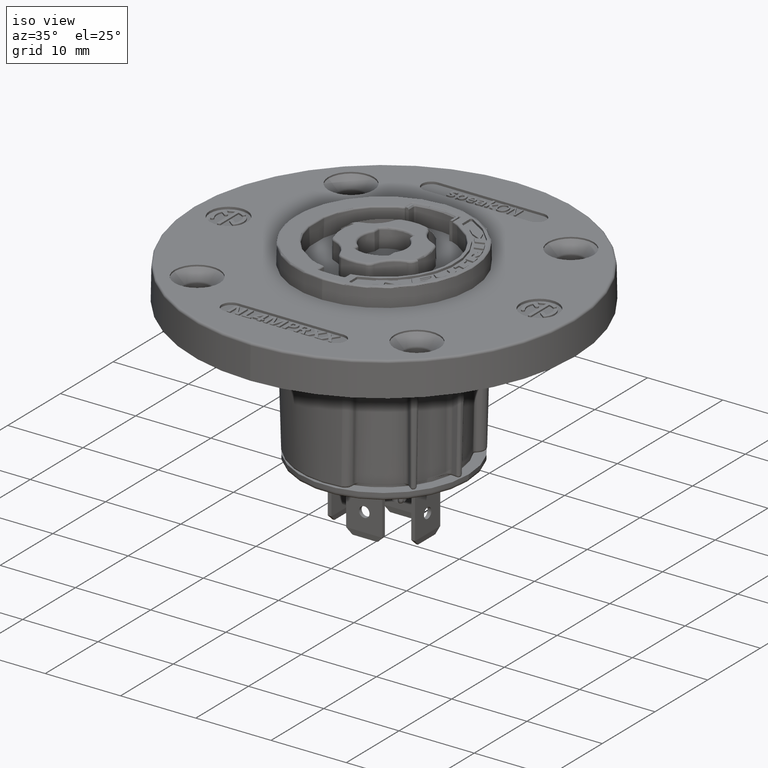
[diagram: clean part render]
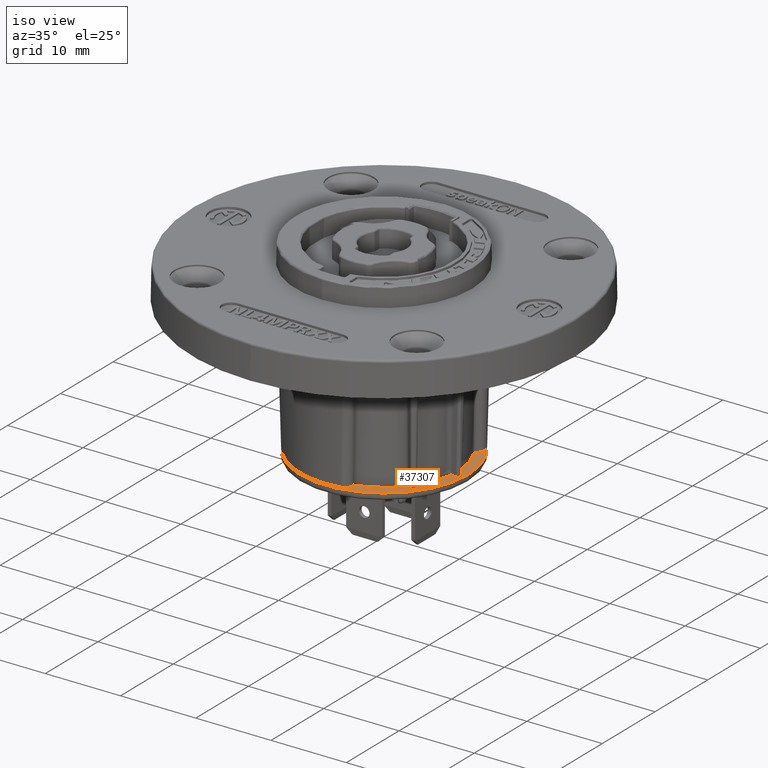
[diagram: same view with one face highlighted and labeled with its STEP entity id]
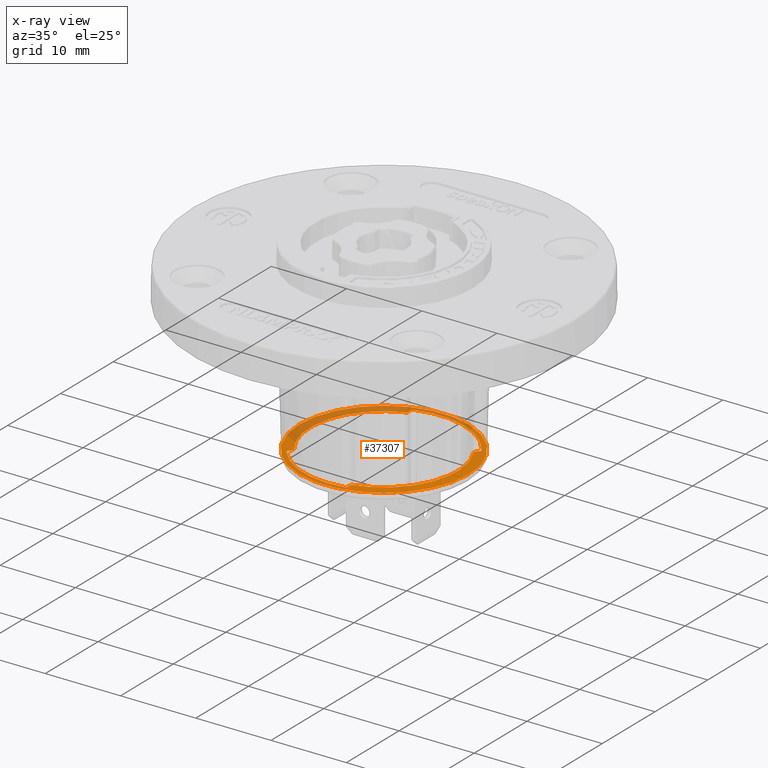
[diagram: x-ray of the same camera — body ghosted, the highlighted face saturated]
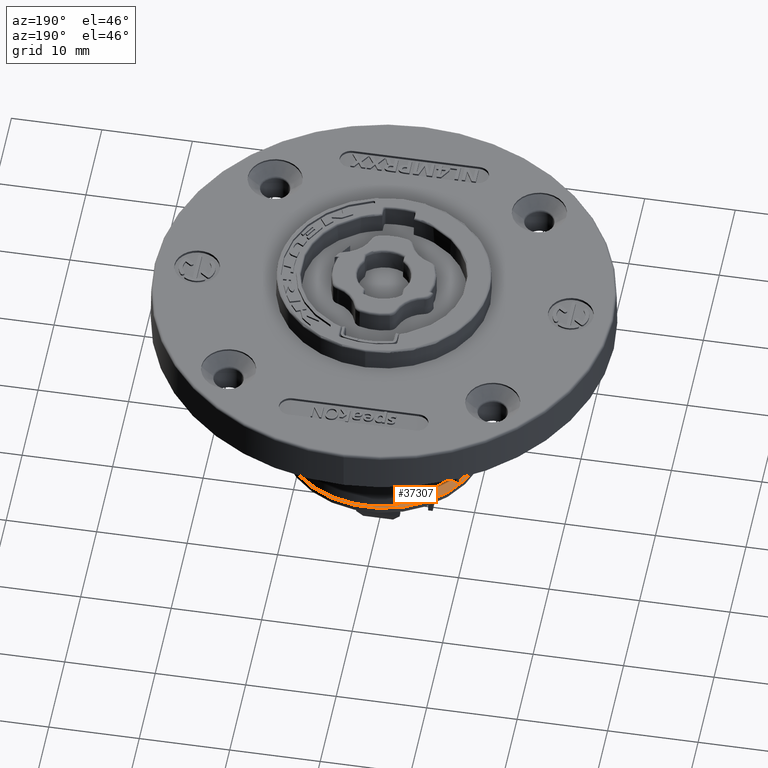
[diagram: same view with one face highlighted and labeled with its STEP entity id]
A machine part, iso view. The second image highlights one B-rep face of the part: STEP entity #37307.
The next image is the same camera in x-ray: the body ghosted, the highlighted face saturated — about 40% of this face is hidden behind the body in this view.
A second angle (auxiliary view) of the same face is appended — the face is thin or edge-on in the first view.
In plain terms, the highlighted planar face has unit normal (0, 0, -1).
Its self-contained STEP definition (entity closure, byte-faithful):
#9944=CARTESIAN_POINT('',(0.E0,0.E0,-1.795E1));
#9945=DIRECTION('',(0.E0,0.E0,-1.E0));
#9946=DIRECTION('',(8.581025859946E-1,5.134782876708E-1,0.E0));
#9947=AXIS2_PLACEMENT_3D('',#9944,#9945,#9946);
#9990=CARTESIAN_POINT('',(0.E0,0.E0,-1.795E1));
#9991=DIRECTION('',(0.E0,0.E0,-1.E0));
#9992=DIRECTION('',(-8.069467353079E-1,-5.906242175664E-1,0.E0));
#9993=AXIS2_PLACEMENT_3D('',#9990,#9991,#9992);
#9995=CARTESIAN_POINT('',(0.E0,0.E0,-1.795E1));
#9996=DIRECTION('',(0.E0,0.E0,-1.E0));
#9997=DIRECTION('',(-1.E0,0.E0,0.E0));
#9998=AXIS2_PLACEMENT_3D('',#9995,#9996,#9997);
#10000=CARTESIAN_POINT('',(0.E0,0.E0,-1.795E1));
#10001=DIRECTION('',(0.E0,0.E0,-1.E0));
#10002=DIRECTION('',(1.E0,0.E0,0.E0));
#10003=AXIS2_PLACEMENT_3D('',#10000,#10001,#10002);
#10005=CARTESIAN_POINT('',(0.E0,0.E0,-1.795E1));
#10006=DIRECTION('',(0.E0,0.E0,1.E0));
#10007=DIRECTION('',(2.901407772594E-1,9.569839755039E-1,0.E0));
#10008=AXIS2_PLACEMENT_3D('',#10005,#10006,#10007);
#10010=CARTESIAN_POINT('',(-3.089168238449E0,1.019032009625E1,-1.795E1));
#10011=CARTESIAN_POINT('',(-3.103853188476E0,1.018586843140E1,-1.795E1));
#10012=CARTESIAN_POINT('',(-3.132814702913E0,1.017525103069E1,-1.795E1));
#10013=CARTESIAN_POINT('',(-3.174309815713E0,1.015432757762E1,-1.795E1));
#10014=CARTESIAN_POINT('',(-3.213260241839E0,1.012861790410E1,-1.795E1));
#10015=CARTESIAN_POINT('',(-3.248975087964E0,1.009852784298E1,-1.795E1));
#10016=CARTESIAN_POINT('',(-3.280883508228E0,1.006456259805E1,-1.795E1));
#10017=CARTESIAN_POINT('',(-3.308612847852E0,1.002716954580E1,-1.795E1));
#10018=CARTESIAN_POINT('',(-3.331861621331E0,9.986742849113E0,-1.795E1));
#10019=CARTESIAN_POINT('',(-3.350285705833E0,9.943802341352E0,-1.795E1));
#10020=CARTESIAN_POINT('',(-3.363562250256E0,9.899073805828E0,-1.795E1));
#10021=CARTESIAN_POINT('',(-3.371505247242E0,9.853435070212E0,-1.795E1));
#10022=CARTESIAN_POINT('',(-3.373262242124E0,9.822727310652E0,-1.795E1));
#10023=CARTESIAN_POINT('',(-3.373262242124E0,9.807484011990E0,-1.795E1));
#10025=DIRECTION('',(8.662716195655E-12,-1.E0,0.E0));
#10026=VECTOR('',#10025,6.064069449662E-1);
#10027=CARTESIAN_POINT('',(-3.373262242124E0,9.807484011990E0,-1.795E1));
#10028=LINE('',#10027,#10026);
#10029=CARTESIAN_POINT('',(3.176341302403E0,1.015209320224E1,-1.795E1));
#10030=CARTESIAN_POINT('',(3.175436080729E0,1.015262666202E1,-1.795E1));
#10031=CARTESIAN_POINT('',(3.161190543447E0,1.016094628441E1,-1.795E1));
#10032=CARTESIAN_POINT('',(3.132944549091E0,1.017518098150E1,-1.795E1));
#10033=CARTESIAN_POINT('',(3.104092162201E0,1.018577960173E1,-1.795E1));
#10034=CARTESIAN_POINT('',(3.089629775282E0,1.019016466419E1,-1.795E1));
#14335=CARTESIAN_POINT('',(3.176341302403E0,1.015209320224E1,-1.795E1));
#14337=CARTESIAN_POINT('',(0.E0,0.E0,-1.795E1));
#14338=DIRECTION('',(0.E0,0.E0,-1.E0));
#14339=DIRECTION('',(2.986014668584E-1,9.543778937035E-1,0.E0));
#14340=AXIS2_PLACEMENT_3D('',#14337,#14338,#14339);
#14354=CARTESIAN_POINT('',(8.870211503555E0,5.871412807231E0,-1.795E1));
#14355=CARTESIAN_POINT('',(8.879165378272E0,5.857885779547E0,-1.795E1));
#14356=CARTESIAN_POINT('',(8.894766080287E0,5.829940285587E0,-1.795E1));
#14357=CARTESIAN_POINT('',(8.910886710938E0,5.784035713683E0,-1.795E1));
#14358=CARTESIAN_POINT('',(8.917845859550E0,5.736109407467E0,-1.795E1));
#14359=CARTESIAN_POINT('',(8.914964672831E0,5.687939819738E0,-1.795E1));
#14360=CARTESIAN_POINT('',(8.902453134646E0,5.641466031130E0,-1.795E1));
#14361=CARTESIAN_POINT('',(8.881361712769E0,5.598261512465E0,-1.795E1));
#14362=CARTESIAN_POINT('',(8.862863510738E0,5.572530940812E0,-1.795E1));
#14363=CARTESIAN_POINT('',(8.852545789677E0,5.560234759670E0,-1.795E1));
#14382=CARTESIAN_POINT('',(8.409349187075E0,5.032053616294E0,-1.795E1));
#14390=DIRECTION('',(-6.427876096866E-1,-7.660444431190E-1,0.E0));
#14391=VECTOR('',#14390,6.894915146518E-1);
#14392=CARTESIAN_POINT('',(8.852545789677E0,5.560234759670E0,-1.795E1));
#14393=LINE('',#14392,#14391);
#20402=CARTESIAN_POINT('',(2.287393499174E0,-9.529246996870E0,-1.795E1));
#20407=DIRECTION('',(0.E0,1.E0,0.E0));
#20408=VECTOR('',#20407,6.478042024183E-1);
#20409=CARTESIAN_POINT('',(2.287393499174E0,-1.017705119929E1,-1.795E1));
#20410=LINE('',#20409,#20408);
#20417=CARTESIAN_POINT('',(2.287393499174E0,-1.017705119929E1,-1.795E1));
#20418=CARTESIAN_POINT('',(2.287393499174E0,-1.019431228756E1,-1.795E1));
#20419=CARTESIAN_POINT('',(2.284764870576E0,-1.022825013560E1,-1.795E1));
#20420=CARTESIAN_POINT('',(2.271656877985E0,-1.027836219640E1,-1.795E1));
#20421=CARTESIAN_POINT('',(2.248472069637E0,-1.032482287245E1,-1.795E1));
#20422=CARTESIAN_POINT('',(2.215598341590E0,-1.036499968668E1,-1.795E1));
#20423=CARTESIAN_POINT('',(2.174579029853E0,-1.039697747065E1,-1.795E1));
#20424=CARTESIAN_POINT('',(2.127749932326E0,-1.041983683993E1,-1.795E1));
#20425=CARTESIAN_POINT('',(2.094829265491E0,-1.042910024106E1,-1.795E1));
#20426=CARTESIAN_POINT('',(2.077813363335E0,-1.043248925692E1,-1.795E1));
#20443=CARTESIAN_POINT('',(0.E0,0.E0,-1.795E1));
#20444=DIRECTION('',(0.E0,0.E0,1.E0));
#20445=DIRECTION('',(-7.831044132279E-1,-6.218902459301E-1,0.E0));
#20446=AXIS2_PLACEMENT_3D('',#20443,#20444,#20445);
#20460=CARTESIAN_POINT('',(-8.330189789314E0,-6.615291268140E0,-1.795E1));
#20461=CARTESIAN_POINT('',(-8.340935437816E0,-6.601759998254E0,-1.795E1));
#20462=CARTESIAN_POINT('',(-8.359988082169E0,-6.573524908559E0,-1.795E1));
#20463=CARTESIAN_POINT('',(-8.380878813985E0,-6.526020550826E0,-1.795E1));
#20464=CARTESIAN_POINT('',(-8.391534481312E0,-6.475334884645E0,-1.795E1));
#20465=CARTESIAN_POINT('',(-8.390779005952E0,-6.423633420129E0,-1.795E1));
#20466=CARTESIAN_POINT('',(-8.378685112081E0,-6.373390572684E0,-1.795E1));
#20467=CARTESIAN_POINT('',(-8.356560235640E0,-6.326695285275E0,-1.795E1));
#20468=CARTESIAN_POINT('',(-8.336812257719E0,-6.299087199507E0,-1.795E1));
#20469=CARTESIAN_POINT('',(-8.325746431625E0,-6.285899461504E0,-1.795E1));
#20489=CARTESIAN_POINT('',(-7.908025198070E0,-5.788078680712E0,-1.795E1));
#20497=DIRECTION('',(-6.427876096865E-1,-7.660444431190E-1,0.E0));
#20498=VECTOR('',#20497,6.498588760278E-1);
#20499=CARTESIAN_POINT('',(-7.908025198070E0,-5.788078680712E0,-1.795E1));
#20500=LINE('',#20499,#20498);
#23657=CARTESIAN_POINT('',(-1.125E1,0.E0,-1.795E1));
#23658=CARTESIAN_POINT('',(1.125E1,0.E0,-1.795E1));
#23659=VERTEX_POINT('',#23657);
#23660=VERTEX_POINT('',#23658);
#23925=CARTESIAN_POINT('',(-8.330189794445E0,-6.615291259256E0,-1.795E1));
#23926=CARTESIAN_POINT('',(2.077813367035E0,-1.043248925559E1,-1.795E1));
#23927=VERTEX_POINT('',#23925);
#23928=VERTEX_POINT('',#23926);
#23929=VERTEX_POINT('',#20417);
#23930=VERTEX_POINT('',#20469);
#23931=VERTEX_POINT('',#14354);
#23932=VERTEX_POINT('',#14363);
#24315=VERTEX_POINT('',#14382);
#24316=VERTEX_POINT('',#20402);
#24317=VERTEX_POINT('',#20489);
#24491=VERTEX_POINT('',#14335);
#24501=CARTESIAN_POINT('',(3.089495083391E0,1.019021633267E1,-1.795E1));
#24502=CARTESIAN_POINT('',(-3.089215760536E0,1.019030101429E1,-1.795E1));
#24503=VERTEX_POINT('',#24501);
#24504=VERTEX_POINT('',#24502);
#24505=VERTEX_POINT('',#10023);
#24506=CARTESIAN_POINT('',(-3.373262242119E0,9.201077067024E0,-1.795E1));
#24507=VERTEX_POINT('',#24506);
#37268=CARTESIAN_POINT('',(0.E0,0.E0,-1.795E1));
#37269=DIRECTION('',(0.E0,0.E0,-1.E0));
#37270=DIRECTION('',(-1.E0,0.E0,0.E0));
#37271=AXIS2_PLACEMENT_3D('',#37268,#37269,#37270);
#37272=PLANE('',#37271);
#37274=ORIENTED_EDGE('',*,*,#37273,.T.);
#37276=ORIENTED_EDGE('',*,*,#37275,.T.);
#37277=EDGE_LOOP('',(#37274,#37276));
#37278=FACE_OUTER_BOUND('',#37277,.F.);
#37280=ORIENTED_EDGE('',*,*,#37279,.T.);
#37282=ORIENTED_EDGE('',*,*,#37281,.T.);
#37284=ORIENTED_EDGE('',*,*,#37283,.T.);
#37285=ORIENTED_EDGE('',*,*,#37263,.F.);
#37287=ORIENTED_EDGE('',*,*,#37286,.T.);
#37289=ORIENTED_EDGE('',*,*,#37288,.F.);
#37291=ORIENTED_EDGE('',*,*,#37290,.T.);
#37293=ORIENTED_EDGE('',*,*,#37292,.F.);
#37295=ORIENTED_EDGE('',*,*,#37294,.T.);
#37296=ORIENTED_EDGE('',*,*,#37194,.F.);
#37298=ORIENTED_EDGE('',*,*,#37297,.F.);
#37300=ORIENTED_EDGE('',*,*,#37299,.F.);
#37302=ORIENTED_EDGE('',*,*,#37301,.F.);
#37304=ORIENTED_EDGE('',*,*,#37303,.T.);
#37305=EDGE_LOOP('',(#37280,#37282,#37284,#37285,#37287,#37289,#37291,#37293,
#37295,#37296,#37298,#37300,#37302,#37304));
#37306=FACE_BOUND('',#37305,.F.);
#37307=ADVANCED_FACE('',(#37278,#37306),#37272,.F.);
#9948=CIRCLE('',#9947,9.799934558323E0);
#9994=CIRCLE('',#9993,9.799934558323E0);
#9999=CIRCLE('',#9998,1.125E1);
#10004=CIRCLE('',#10003,1.125E1);
#10009=CIRCLE('',#10008,1.064826224212E1);
#10024=B_SPLINE_CURVE_WITH_KNOTS('',3,(#10010,#10011,#10012,#10013,#10014,
#10015,#10016,#10017,#10018,#10019,#10020,#10021,#10022,#10023),.UNSPECIFIED.,
.F.,.F.,(4,1,1,1,1,1,1,1,1,1,1,4),(0.E0,9.018216004387E-2,1.810378780796E-1,
2.724419365542E-1,3.638590601038E-1,4.548719591987E-1,5.457107014205E-1,
6.368377081054E-1,7.283286351998E-1,8.196988380809E-1,9.104148117482E-1,1.E0),
.UNSPECIFIED.);
#10035=B_SPLINE_CURVE_WITH_KNOTS('',3,(#10029,#10030,#10031,#10032,#10033,
#10034),.UNSPECIFIED.,.F.,.F.,(4,1,1,4),(0.E0,3.323265788232E-2,
5.217545239631E-1,1.E0),.UNSPECIFIED.);
#14341=CIRCLE('',#14340,1.063739349917E1);
#14364=B_SPLINE_CURVE_WITH_KNOTS('',3,(#14354,#14355,#14356,#14357,#14358,
#14359,#14360,#14361,#14362,#14363),.UNSPECIFIED.,.F.,.F.,(4,1,1,1,1,1,1,4),(
0.E0,1.428571428571E-1,2.857142857143E-1,4.285714285714E-1,5.714285714286E-1,
7.142857142857E-1,8.571428571429E-1,1.E0),.UNSPECIFIED.);
#20427=B_SPLINE_CURVE_WITH_KNOTS('',3,(#20417,#20418,#20419,#20420,#20421,
#20422,#20423,#20424,#20425,#20426),.UNSPECIFIED.,.F.,.F.,(4,1,1,1,1,1,1,4),(
0.E0,1.428571428571E-1,2.857142857143E-1,4.285714285714E-1,5.714285714286E-1,
7.142857142857E-1,8.571428571429E-1,1.E0),.UNSPECIFIED.);
#20447=CIRCLE('',#20446,1.063739349917E1);
#20470=B_SPLINE_CURVE_WITH_KNOTS('',3,(#20460,#20461,#20462,#20463,#20464,
#20465,#20466,#20467,#20468,#20469),.UNSPECIFIED.,.F.,.F.,(4,1,1,1,1,1,1,4),(
0.E0,1.428571428571E-1,2.857142857143E-1,4.285714285714E-1,5.714285714286E-1,
7.142857142857E-1,8.571428571429E-1,1.E0),.UNSPECIFIED.);
#37194=EDGE_CURVE('',#24315,#24316,#9948,.T.);
#37263=EDGE_CURVE('',#24317,#24507,#9994,.T.);
#37273=EDGE_CURVE('',#23659,#23660,#9999,.T.);
#37275=EDGE_CURVE('',#23660,#23659,#10004,.T.);
#37279=EDGE_CURVE('',#24503,#24504,#10009,.T.);
#37281=EDGE_CURVE('',#24504,#24505,#10024,.T.);
#37283=EDGE_CURVE('',#24505,#24507,#10028,.T.);
#37286=EDGE_CURVE('',#24317,#23930,#20500,.T.);
#37288=EDGE_CURVE('',#23927,#23930,#20470,.T.);
#37290=EDGE_CURVE('',#23927,#23928,#20447,.T.);
#37292=EDGE_CURVE('',#23929,#23928,#20427,.T.);
#37294=EDGE_CURVE('',#23929,#24316,#20410,.T.);
#37297=EDGE_CURVE('',#23932,#24315,#14393,.T.);
#37299=EDGE_CURVE('',#23931,#23932,#14364,.T.);
#37301=EDGE_CURVE('',#24491,#23931,#14341,.T.);
#37303=EDGE_CURVE('',#24491,#24503,#10035,.T.);